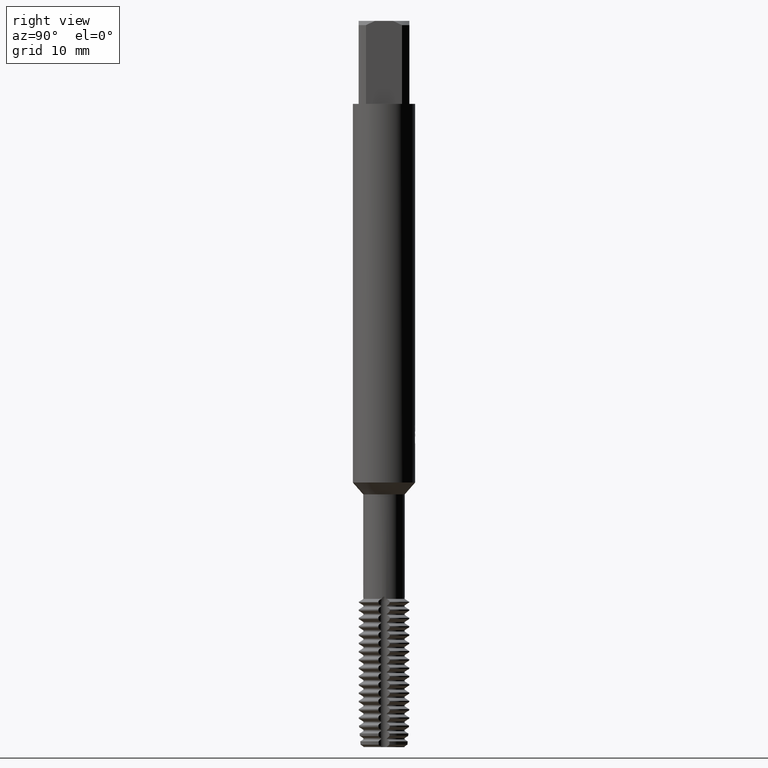
[diagram: clean part render]
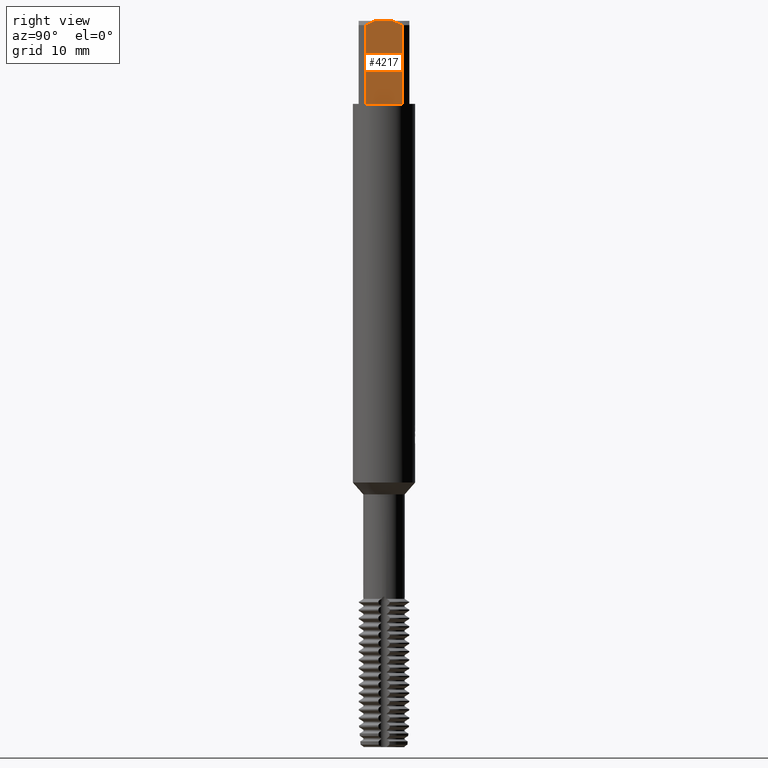
[diagram: same view with one face highlighted and labeled with its STEP entity id]
A machine part, right view. The second image highlights one B-rep face of the part: STEP entity #4217.
In plain terms, the highlighted planar face has unit normal (1, 0, 0).
Its self-contained STEP definition (entity closure, byte-faithful):
#3415=VERTEX_POINT('',#9342);
#3845=VERTEX_POINT('',#9812);
#4211=VERTEX_POINT('',#10213);
#4217=ADVANCED_FACE('',(#10220),#10221,.T.);
#4491=VERTEX_POINT('',#10520);
#5591=EDGE_CURVE('',#3845,#6953,#11714,.T.);
#6921=EDGE_CURVE('',#3415,#4211,#13163,.T.);
#6953=VERTEX_POINT('',#13196);
#7053=EDGE_CURVE('',#6953,#3415,#13303,.T.);
#7179=EDGE_CURVE('',#7609,#3845,#13438,.T.);
#7609=VERTEX_POINT('',#13899);
#8269=EDGE_CURVE('',#4211,#4491,#14610,.T.);
#8769=EDGE_CURVE('',#4491,#7609,#15144,.T.);
#9342=CARTESIAN_POINT('',(2.45,-0.87034475927646,0.0));
#9812=CARTESIAN_POINT('',(2.45,-1.73132896931808,-8.0));
#10213=CARTESIAN_POINT('',(2.45,0.87034475927646,0.0));
#10220=FACE_OUTER_BOUND('',#17806,.T.);
#10221=PLANE('',#17807);
#10520=CARTESIAN_POINT('',(2.45,1.73132896931808,-0.399999999999999));
#11714=LINE('',#20613,#20614);
#13163=LINE('',#23284,#23285);
#13196=CARTESIAN_POINT('',(2.45,-1.73132896931808,-0.399999999999999));
#13303=(B_SPLINE_CURVE(2,(#23526,#23527,#23528),.UNSPECIFIED.,.F.,.F.)B_SPLINE_CURVE_WITH_KNOTS((3,3),(0.0,0.950549192151453),.UNSPECIFIED.)RATIONAL_B_SPLINE_CURVE((1.0,1.01203284912645,1.0))BOUNDED_CURVE()REPRESENTATION_ITEM('')GEOMETRIC_REPRESENTATION_ITEM()CURVE());
#13438=LINE('',#23840,#23841);
#13899=CARTESIAN_POINT('',(2.45,1.73132896931808,-8.0));
#14610=(B_SPLINE_CURVE(2,(#25979,#25980,#25981),.UNSPECIFIED.,.F.,.F.)B_SPLINE_CURVE_WITH_KNOTS((3,3),(0.0,0.950549192151453),.UNSPECIFIED.)RATIONAL_B_SPLINE_CURVE((1.0,1.01203284912645,1.0))BOUNDED_CURVE()REPRESENTATION_ITEM('')GEOMETRIC_REPRESENTATION_ITEM()CURVE());
#15144=LINE('',#27135,#27136);
#17806=EDGE_LOOP('',(#28820,#28821,#28822,#28823,#28824,#28825));
#17807=AXIS2_PLACEMENT_3D('',#28826,#28827,#28828);
#20613=CARTESIAN_POINT('',(2.45,-1.73132896931808,-4.2));
#20614=VECTOR('',#30456,1.0);
#23284=CARTESIAN_POINT('',(2.45,0.65,0.0));
#23285=VECTOR('',#32058,1.0);
#23526=CARTESIAN_POINT('',(2.45,-1.73132896931807,-0.399999999999998));
#23527=CARTESIAN_POINT('',(2.45,-1.27008742822434,-0.133813052683839));
#23528=CARTESIAN_POINT('',(2.45,-0.870344759276449,1.11022302462516E-016));
#23840=CARTESIAN_POINT('',(2.45,0.0,-8.0));
#23841=VECTOR('',#32301,1.0);
#25979=CARTESIAN_POINT('',(2.45,0.870344759276449,1.11022302462516E-016));
#25980=CARTESIAN_POINT('',(2.45,1.27008742822434,-0.133813052683839));
#25981=CARTESIAN_POINT('',(2.45,1.73132896931807,-0.399999999999998));
#27135=CARTESIAN_POINT('',(2.45,1.73132896931808,-4.2));
#27136=VECTOR('',#33964,1.0);
#28820=ORIENTED_EDGE('',*,*,#8769,.F.);
#28821=ORIENTED_EDGE('',*,*,#8269,.F.);
#28822=ORIENTED_EDGE('',*,*,#6921,.F.);
#28823=ORIENTED_EDGE('',*,*,#7053,.F.);
#28824=ORIENTED_EDGE('',*,*,#5591,.F.);
#28825=ORIENTED_EDGE('',*,*,#7179,.F.);
#28826=CARTESIAN_POINT('',(2.45,0.0,-3.5));
#28827=DIRECTION('',(1.0,0.0,0.0));
#28828=DIRECTION('',(0.0,0.0,-1.0));
#30456=DIRECTION('',(-0.0,-0.0,1.0));
#32058=DIRECTION('',(-0.0,1.0,0.0));
#32301=DIRECTION('',(0.0,-1.0,0.0));
#33964=DIRECTION('',(0.0,0.0,-1.0));